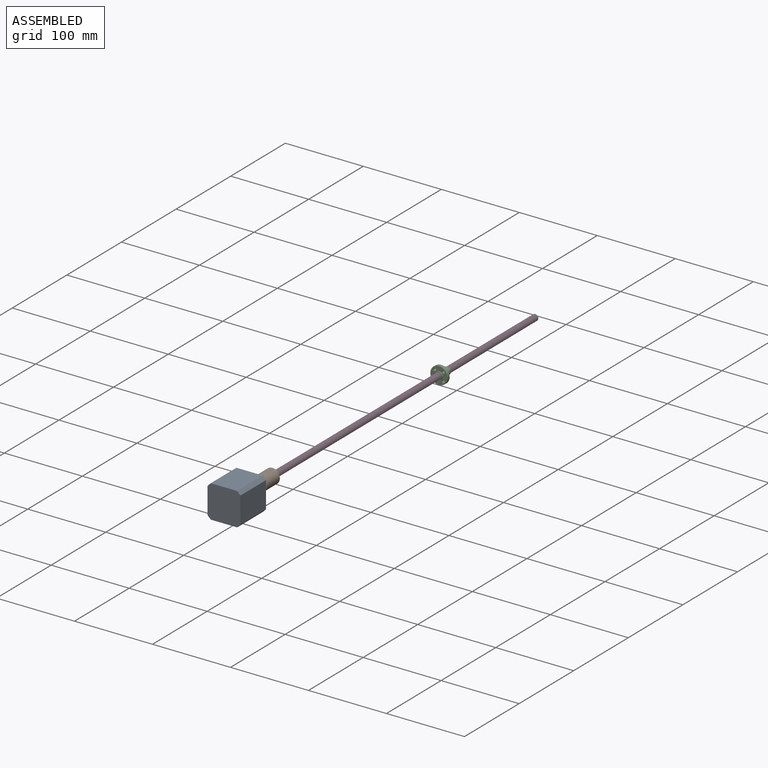
[diagram: assembled view]
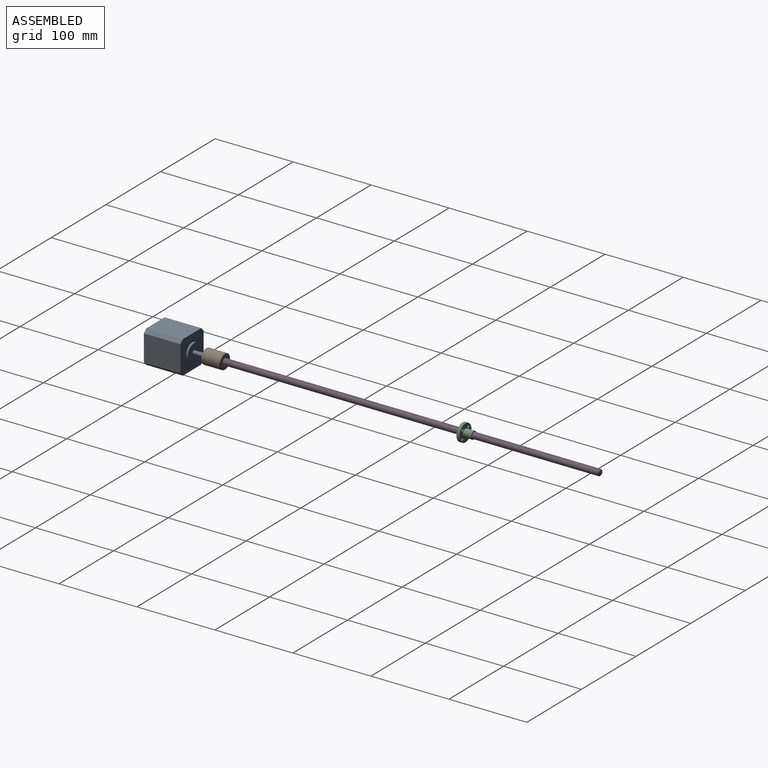
[diagram: assembled view, second angle]
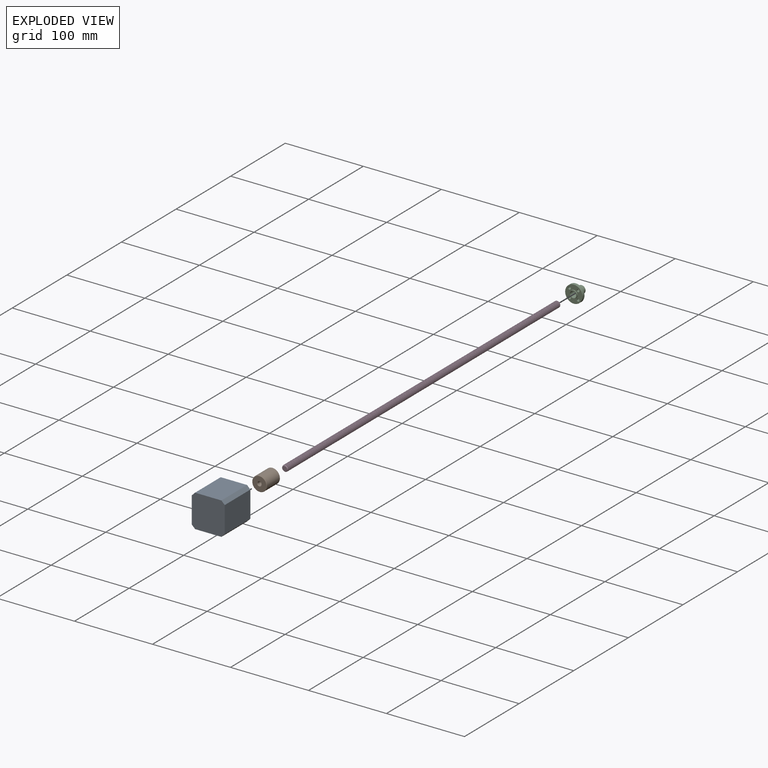
[diagram: exploded view]
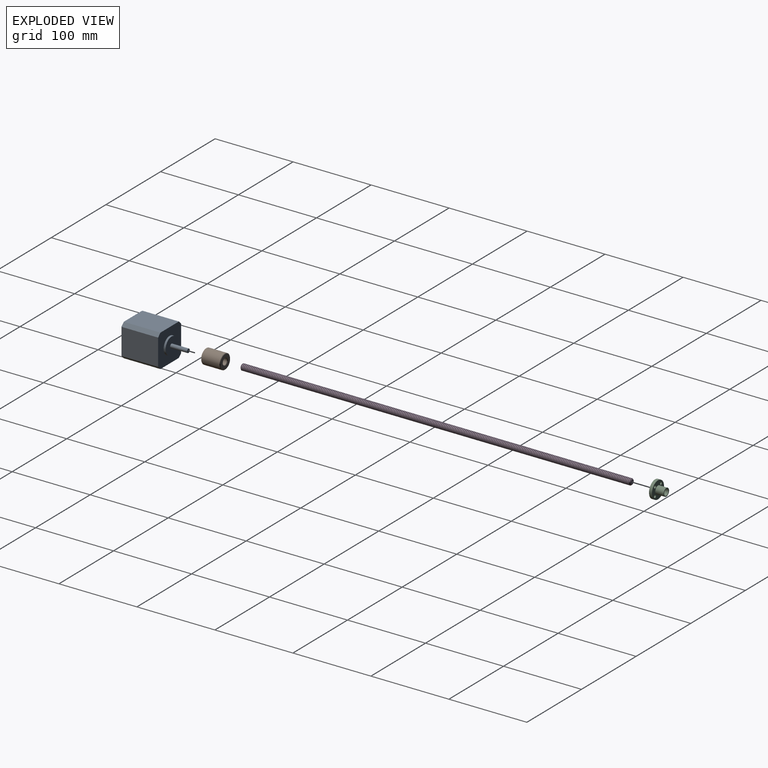
[diagram: exploded view, second angle]
ASSEMBLY  parts=4 mates=3
PART A: 14 faces, bbox 42.2x71x42.2 mm
  f0: plane 47x33.8mm, normal (0,0,1), area 1588.6mm2, adj f4,f5,f11,f13
  f1: plane 47x33.8mm, normal (-1,0,0), area 1588.6mm2, adj f4,f5,f12,f13
  f2: plane 47x33.8mm, normal (0,0,-1), area 1588.6mm2, adj f4,f5,f10,f12
  f3: plane 47x33.8mm, normal (1,0,0), area 1588.6mm2, adj f4,f5,f10,f11
  f4: plane 42.2x42.2mm, normal (0,-1,0), area 1745.6mm2, adj f0,f1,f2,f3,f10,f11,f12,f13
  f5: plane 42.2x42.2mm, normal (0,1,0), area 1365.4mm2, adj f0,f1,f2,f3,f6,f10,f11,f12
  f6: cone r=11mm half-angle=5deg, axis (0,-1,0), area 164.9mm2, adj f5,f7
  f7: plane 21.58x21.58mm, normal (0,1,0), area 346.1mm2, adj f6,f8
  f8: cylinder r=2.5mm len=21.6mm, axis (0,-1,0), area 339.3mm2, adj f7,f9
  f9: plane 5x5mm, normal (0,1,0), area 19.6mm2, adj f8
  f10: plane 47x4.2mm, normal (0.71,0,-0.71), area 279.2mm2, adj f2,f3,f4,f5
  f11: plane 47x4.2mm, normal (0.71,0,0.71), area 279.2mm2, adj f0,f3,f4,f5
  f12: plane 47x4.2mm, normal (-0.71,0,-0.71), area 279.2mm2, adj f1,f2,f4,f5
  f13: plane 47x4.2mm, normal (-0.71,0,0.71), area 279.2mm2, adj f0,f1,f4,f5
PART B: 10 faces, bbox 18.9x24.5x18.9 mm
  f0: cylinder r=4mm len=18mm, axis (0,1,0), area 452.4mm2, adj f5,f9
  f1: cylinder r=9.45mm len=23.5mm, axis (0,1,0), area 1395.3mm2, adj f6,f8
  f2: plane 17.9x17.9mm, normal (0,-1,0), area 188mm2, adj f8,f9
  f3: plane 17.9x17.9mm, normal (0,1,0), area 223.4mm2, adj f6,f7
  f4: cylinder r=2.5mm len=5.5mm, axis (0,1,0), area 86.4mm2, adj f5,f7
  f5: plane 8x8mm, normal (0,-1,0), area 30.6mm2, adj f0,f4
  f6: cone r=9.45mm half-angle=45deg, axis (0,-1,0), area 40.9mm2, adj f1,f3
  f7: cone r=3mm half-angle=45deg, axis (0,1,0), area 12.2mm2, adj f3,f4
  f8: cone r=8.95mm half-angle=45deg, axis (0,1,0), area 40.9mm2, adj f1,f2
  f9: cone r=4mm half-angle=45deg, axis (0,-1,0), area 18.9mm2, adj f0,f2
PART C: 12 faces, bbox 22.1x22.1x16 mm
  f0: cylinder r=11.07mm len=22.14mm, axis (0,0,-1), area 264.3mm2, adj f1,f2
  f1: plane 22.14x22.14mm, normal (0,0,1), area 268mm2, adj f0,f5,f8,f9,f10,f11
  f2: plane 22.14x22.14mm, normal (0,0,-1), area 268mm2, adj f0,f3,f8,f9,f10,f11
  f3: cylinder r=5mm len=10mm, axis (0,0,-1), area 47.1mm2, adj f2,f7
  f4: cylinder r=4mm len=16mm, axis (0,0,-1), area 402.1mm2, adj f6,f7
  f5: cylinder r=5mm len=10.7mm, axis (0,0,-1), area 336.2mm2, adj f1,f6
  f6: plane 10x10mm, normal (0,0,1), area 28.3mm2, adj f4,f5
  f7: plane 10x10mm, normal (0,0,-1), area 28.3mm2, adj f3,f4
  f8: cylinder r=1.75mm len=3.8mm, axis (0,0,-1), area 41.8mm2, adj f1,f2
  f9: cylinder r=1.75mm len=3.8mm, axis (0,0,-1), area 41.8mm2, adj f1,f2
  f10: cylinder r=1.75mm len=3.8mm, axis (0,0,-1), area 41.8mm2, adj f1,f2
  f11: cylinder r=1.75mm len=3.8mm, axis (0,0,-1), area 41.8mm2, adj f1,f2
PART D: 10 faces, bbox 8x500.3x9.2 mm
  f0: cylinder r=4mm len=498mm, axis (0,1,0), area 6312.1mm2, adj f3,f4,f7,f8
  f1: plane 6x6mm, normal (0,-1,0), area 28.3mm2, adj f3
  f2: plane 6x6mm, normal (0,1,0), area 28.3mm2, adj f4
  f3: cone r=3mm half-angle=45deg, axis (0,1,0), area 20.6mm2, adj f0,f1,f6,f7,f8,f9
  f4: cone r=4mm half-angle=45deg, axis (0,-1,0), area 20.6mm2, adj f0,f2,f5,f7,f8,f9
  f5: plane 0.15x0.15mm, normal (0,0,-1), area 0mm2, adj f4,f7,f9
  f6: plane 0.15x0.15mm, normal (0,0,1), area 0mm2, adj f3,f8,f9
  f7: bspline ~499.79x9.24mm, area 4350mm2, adj f0,f3,f4,f5,f9
  f8: bspline ~499.79x9.24mm, area 4317.6mm2, adj f0,f3,f4,f6,f9
  f9: cylinder r=3.25mm len=499.5mm, axis (0,-1,0), area -4473.7mm2, adj f3,f4,f5,f6,f7,f8
PLACE A rot(axis=(0,1,0),180deg) t=(0,-279.38,15.26)mm
PLACE B rot(axis=(0,0,1),180deg) t=(24.16,-261.38,-42.59)mm
PLACE C rot(axis=(-1,0,0),90deg) t=(-25.28,67.39,38.61)mm
PLACE D rot(axis=(0,1,0),180deg) t=(-20.27,-5.38,15.26)mm
MATE cylindrical C.f0 <-> D.f0  axis (0,1,0) through (0,71.19,15.26)mm
MATE fastened D.f0 <-> B.f0  axis (0,-1,0) through (0,-255.38,15.26)mm
MATE fastened B.f0 <-> A.f6  axis (0,1,0) through (0,-255.38,15.26)mm
